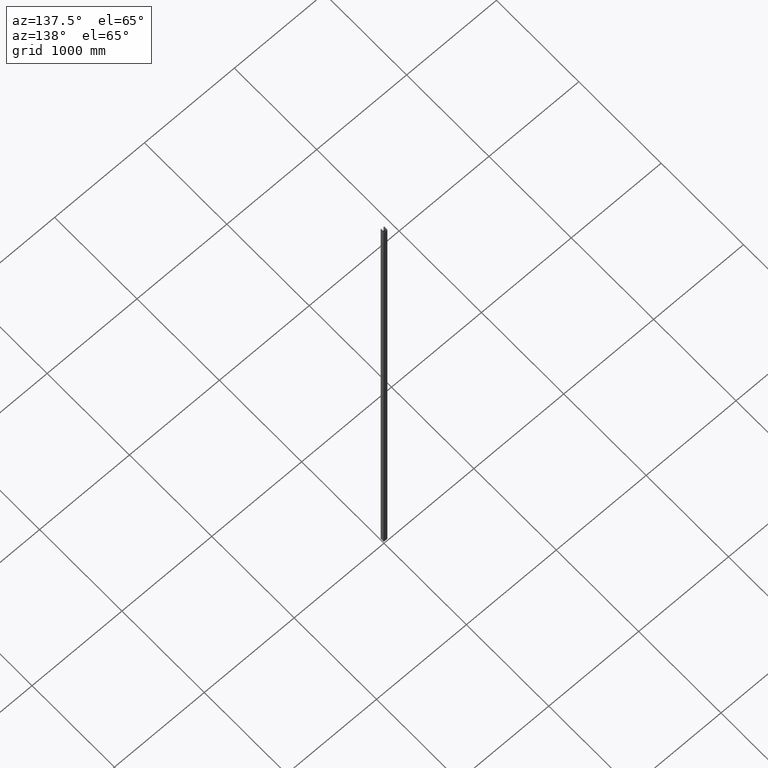
[diagram: clean part render]
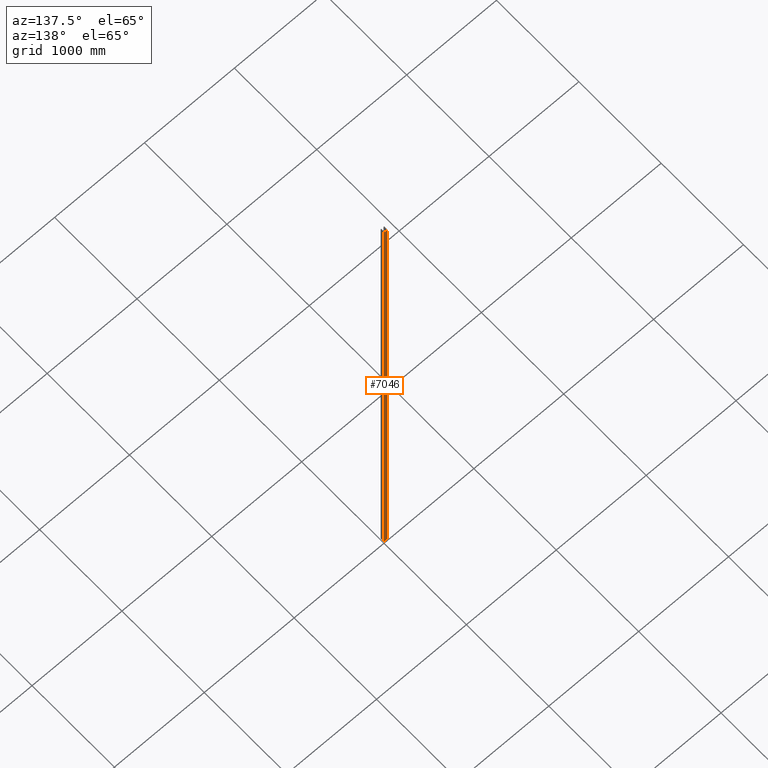
[diagram: same view with one face highlighted and labeled with its STEP entity id]
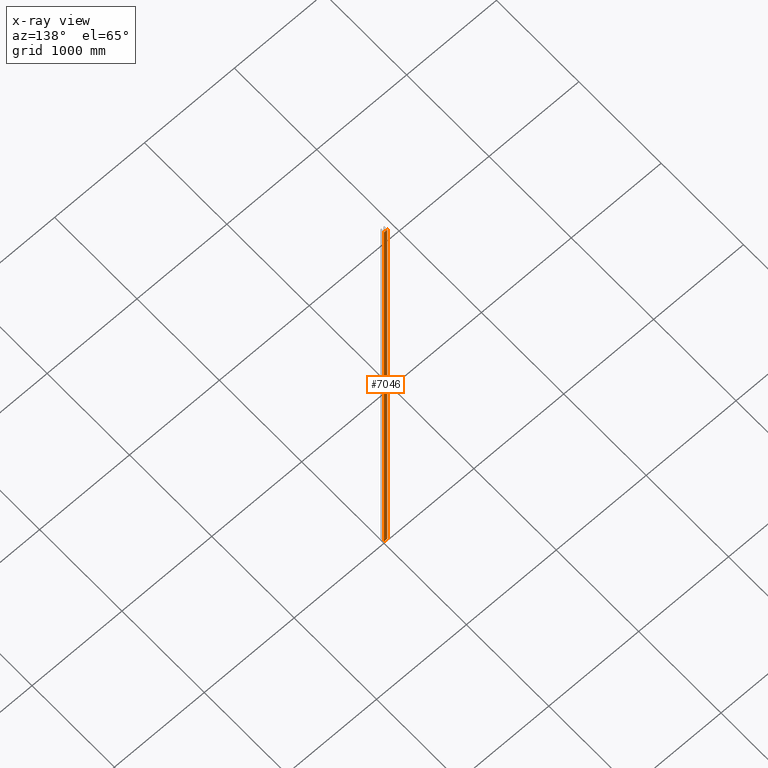
[diagram: x-ray of the same camera — body ghosted, the highlighted face saturated]
A machine part, auxiliary view. The second image highlights one B-rep face of the part: STEP entity #7046.
The next image is the same camera in x-ray: the body ghosted, the highlighted face saturated — about 0% of this face is hidden behind the body in this view.
In plain terms, the highlighted planar face has unit normal (0, -1, 0).
Its self-contained STEP definition (entity closure, byte-faithful):
#91 = CARTESIAN_POINT ( 'NONE',  ( -18.00000000000001066, 20.00000000000000355, -3000.000000000000000 ) ) ;
#855 = VECTOR ( 'NONE', #9163, 1000.000000000000000 ) ;
#1919 = LINE ( 'NONE', #5788, #7617 ) ;
#2124 = VERTEX_POINT ( 'NONE', #91 ) ;
#2249 = VECTOR ( 'NONE', #7378, 1000.000000000000000 ) ;
#2726 = PLANE ( 'NONE',  #13175 ) ;
#3002 = ORIENTED_EDGE ( 'NONE', *, *, #15253, .T. ) ;
#3087 = EDGE_LOOP ( 'NONE', ( #4135, #11329, #12024, #3002 ) ) ;
#3188 = VERTEX_POINT ( 'NONE', #13218 ) ;
#3950 = DIRECTION ( 'NONE',  ( 0.000000000000000000, -0.000000000000000000, -1.000000000000000000 ) ) ;
#4135 = ORIENTED_EDGE ( 'NONE', *, *, #11703, .T. ) ;
#4834 = DIRECTION ( 'NONE',  ( -0.000000000000000000, -0.000000000000000000, -1.000000000000000000 ) ) ;
#5302 = CARTESIAN_POINT ( 'NONE',  ( -18.00000000000001066, 20.00000000000000355, 3000.000000000000000 ) ) ;
#5579 = CARTESIAN_POINT ( 'NONE',  ( 17.99999999999999289, 20.00000000000000355, 3000.000000000000000 ) ) ;
#5722 = CARTESIAN_POINT ( 'NONE',  ( 17.99999999999999289, 20.00000000000000355, 3000.000000000000000 ) ) ;
#5788 = CARTESIAN_POINT ( 'NONE',  ( -18.00000000000001066, 20.00000000000000355, 3000.000000000000000 ) ) ;
#6199 = VECTOR ( 'NONE', #14289, 1000.000000000000000 ) ;
#6868 = FACE_OUTER_BOUND ( 'NONE', #3087, .T. ) ;
#6877 = CARTESIAN_POINT ( 'NONE',  ( -18.00000000000001066, 20.00000000000000355, 3000.000000000000000 ) ) ;
#7046 = ADVANCED_FACE ( 'NONE', ( #6868 ), #2726, .F. ) ;
#7378 = DIRECTION ( 'NONE',  ( -1.000000000000000000, -0.000000000000000000, -0.000000000000000000 ) ) ;
#7431 = EDGE_CURVE ( 'NONE', #15686, #2124, #1919, .T. ) ;
#7532 = LINE ( 'NONE', #6877, #6199 ) ;
#7617 = VECTOR ( 'NONE', #4834, 1000.000000000000000 ) ;
#9163 = DIRECTION ( 'NONE',  ( -0.000000000000000000, -0.000000000000000000, -1.000000000000000000 ) ) ;
#9831 = LINE ( 'NONE', #5579, #855 ) ;
#9982 = CARTESIAN_POINT ( 'NONE',  ( -18.00000000000001066, 20.00000000000000355, 3000.000000000000000 ) ) ;
#11329 = ORIENTED_EDGE ( 'NONE', *, *, #7431, .F. ) ;
#11703 = EDGE_CURVE ( 'NONE', #3188, #2124, #12426, .T. ) ;
#12024 = ORIENTED_EDGE ( 'NONE', *, *, #14720, .F. ) ;
#12192 = CARTESIAN_POINT ( 'NONE',  ( -18.00000000000001066, 20.00000000000000355, -3000.000000000000000 ) ) ;
#12426 = LINE ( 'NONE', #12192, #2249 ) ;
#13175 = AXIS2_PLACEMENT_3D ( 'NONE', #9982, #14693, #3950 ) ;
#13218 = CARTESIAN_POINT ( 'NONE',  ( 17.99999999999999289, 20.00000000000000355, -3000.000000000000000 ) ) ;
#14289 = DIRECTION ( 'NONE',  ( -1.000000000000000000, -0.000000000000000000, -0.000000000000000000 ) ) ;
#14363 = VERTEX_POINT ( 'NONE', #5722 ) ;
#14693 = DIRECTION ( 'NONE',  ( 0.000000000000000000, -1.000000000000000000, 0.000000000000000000 ) ) ;
#14720 = EDGE_CURVE ( 'NONE', #14363, #15686, #7532, .T. ) ;
#15253 = EDGE_CURVE ( 'NONE', #14363, #3188, #9831, .T. ) ;
#15686 = VERTEX_POINT ( 'NONE', #5302 ) ;